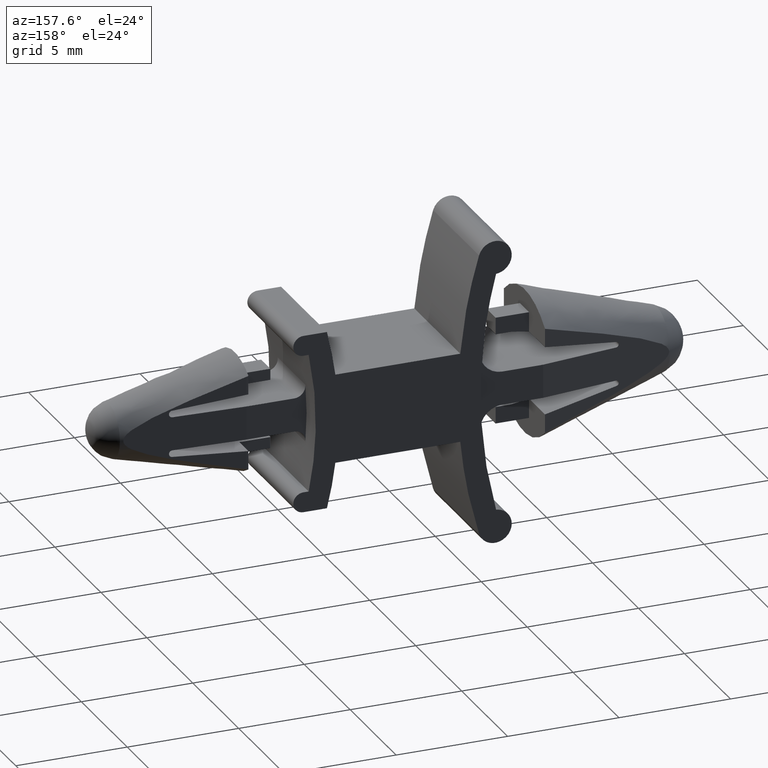
[diagram: clean part render]
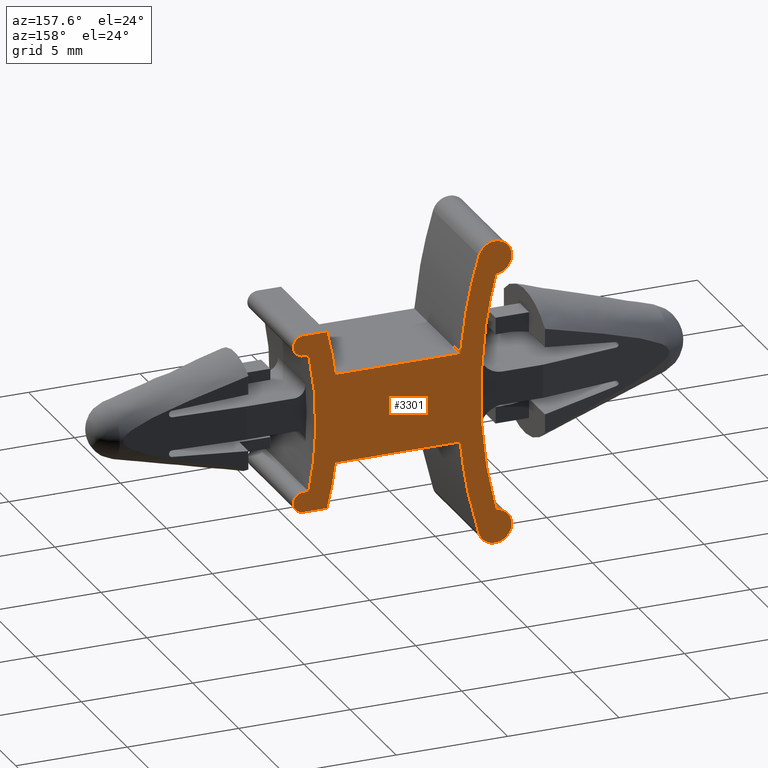
[diagram: same view with one face highlighted and labeled with its STEP entity id]
A machine part, auxiliary view. The second image highlights one B-rep face of the part: STEP entity #3301.
In plain terms, the highlighted face is a freeform B-spline surface patch.
Its self-contained STEP definition (entity closure, byte-faithful):
#1053=CARTESIAN_POINT('',(5.890000000000001,2.500000000000060,-4.0));
#1054=VERTEX_POINT('',#1053);
#1060=CARTESIAN_POINT('',(6.949999999999999,2.500000000000060,-4.0));
#1061=VERTEX_POINT('',#1060);
#1062=CARTESIAN_POINT('',(6.949999999999999,2.500000000000060,-4.0));
#1063=CARTESIAN_POINT('',(5.890000000000001,2.500000000000060,-4.0));
#1064=QUASI_UNIFORM_CURVE('',1,(#1062,#1063),.UNSPECIFIED.,.F.,.U.);
#1065=EDGE_CURVE('',#1061,#1054,#1064,.T.);
#1111=CARTESIAN_POINT('',(6.949999999999999,2.500000000000060,-3.100000000000000));
#1112=VERTEX_POINT('',#1111);
#1113=CARTESIAN_POINT('',(6.949999999999999,2.500000000000060,-4.0));
#1114=CARTESIAN_POINT('',(7.400000000000000,2.500000000000060,-4.0));
#1115=CARTESIAN_POINT('',(7.400000000000000,2.500000000000060,-3.550000000000000));
#1116=CARTESIAN_POINT('',(7.400000000000000,2.500000000000060,-3.100000000000000));
#1117=CARTESIAN_POINT('',(6.949999999999999,2.500000000000060,-3.100000000000001));
#1125=(BOUNDED_CURVE()B_SPLINE_CURVE(2,(#1113,#1114,#1115,#1116,#1117),.UNSPECIFIED.,.F.,.U.)B_SPLINE_CURVE_WITH_KNOTS((3,2,3),(0.0,0.500000000000000,1.0),.UNSPECIFIED.)CURVE()GEOMETRIC_REPRESENTATION_ITEM()RATIONAL_B_SPLINE_CURVE((1.0,0.707106781186547,1.0,0.707106781186547,1.0))REPRESENTATION_ITEM(''));
#1126=EDGE_CURVE('',#1061,#1112,#1125,.T.);
#1149=CARTESIAN_POINT('',(6.708405998815450,2.500000000000060,-3.100000094159435));
#1150=VERTEX_POINT('',#1149);
#1151=CARTESIAN_POINT('',(6.708405998815450,2.500000000000060,-3.100000094159435));
#1152=CARTESIAN_POINT('',(6.949999999999999,2.500000000000060,-3.100000000000000));
#1153=QUASI_UNIFORM_CURVE('',1,(#1151,#1152),.UNSPECIFIED.,.F.,.U.);
#1154=EDGE_CURVE('',#1150,#1112,#1153,.T.);
#1178=CARTESIAN_POINT('',(6.708406000000000,2.500000000000060,3.100000000000000));
#1179=VERTEX_POINT('',#1178);
#1185=CARTESIAN_POINT('',(6.949999999999999,2.500000000000060,3.100000000000000));
#1186=VERTEX_POINT('',#1185);
#1187=CARTESIAN_POINT('',(6.949999999999999,2.500000000000060,3.100000000000000));
#1188=CARTESIAN_POINT('',(6.708406000000000,2.500000000000060,3.100000000000000));
#1189=QUASI_UNIFORM_CURVE('',1,(#1187,#1188),.UNSPECIFIED.,.F.,.U.);
#1190=EDGE_CURVE('',#1186,#1179,#1189,.T.);
#1236=CARTESIAN_POINT('',(6.949999999999999,2.500000000000060,4.0));
#1237=VERTEX_POINT('',#1236);
#1238=CARTESIAN_POINT('',(6.949999999999999,2.500000000000060,3.100000000000001));
#1239=CARTESIAN_POINT('',(7.400000000000000,2.500000000000060,3.100000000000000));
#1240=CARTESIAN_POINT('',(7.400000000000000,2.500000000000060,3.550000000000000));
#1241=CARTESIAN_POINT('',(7.400000000000000,2.500000000000060,4.0));
#1242=CARTESIAN_POINT('',(6.949999999999999,2.500000000000060,4.0));
#1250=(BOUNDED_CURVE()B_SPLINE_CURVE(2,(#1238,#1239,#1240,#1241,#1242),.UNSPECIFIED.,.F.,.U.)B_SPLINE_CURVE_WITH_KNOTS((3,2,3),(0.0,0.500000000000000,1.0),.UNSPECIFIED.)CURVE()GEOMETRIC_REPRESENTATION_ITEM()RATIONAL_B_SPLINE_CURVE((1.0,0.707106781186547,1.0,0.707106781186547,1.0))REPRESENTATION_ITEM(''));
#1251=EDGE_CURVE('',#1186,#1237,#1250,.T.);
#1274=CARTESIAN_POINT('',(5.890000021097330,2.500000000000060,4.000000083070600));
#1275=VERTEX_POINT('',#1274);
#1276=CARTESIAN_POINT('',(5.890000021097330,2.500000000000060,4.000000083070600));
#1277=CARTESIAN_POINT('',(6.949999999999999,2.500000000000060,4.0));
#1278=QUASI_UNIFORM_CURVE('',1,(#1276,#1277),.UNSPECIFIED.,.F.,.U.);
#1279=EDGE_CURVE('',#1275,#1237,#1278,.T.);
#1304=CARTESIAN_POINT('',(6.708406000000000,2.500000000000060,3.100000000000000));
#1305=CARTESIAN_POINT('',(6.064804221439190,2.500000000000060,-0.000000046956754));
#1306=CARTESIAN_POINT('',(6.708405998815450,2.500000000000060,-3.100000094159435));
#1314=(BOUNDED_CURVE()B_SPLINE_CURVE(2,(#1304,#1305,#1306),.UNSPECIFIED.,.F.,.U.)CURVE()GEOMETRIC_REPRESENTATION_ITEM()QUASI_UNIFORM_CURVE()RATIONAL_B_SPLINE_CURVE((1.0,0.979120918723318,1.0))REPRESENTATION_ITEM(''));
#1315=EDGE_CURVE('',#1179,#1150,#1314,.T.);
#2006=CARTESIAN_POINT('',(5.513546577129890,2.499999999999945,-2.0));
#2007=VERTEX_POINT('',#2006);
#2015=CARTESIAN_POINT('',(5.513546577129890,2.499999999999945,-2.0));
#2016=CARTESIAN_POINT('',(5.639031051419906,2.500000000000060,-3.011809764965877));
#2017=CARTESIAN_POINT('',(5.889999999999996,2.500000000000060,-3.999999999999992));
#2025=(BOUNDED_CURVE()B_SPLINE_CURVE(2,(#2015,#2016,#2017),.UNSPECIFIED.,.F.,.U.)CURVE()GEOMETRIC_REPRESENTATION_ITEM()QUASI_UNIFORM_CURVE()RATIONAL_B_SPLINE_CURVE((1.0,0.998037498113485,1.0))REPRESENTATION_ITEM(''));
#2026=EDGE_CURVE('',#2007,#1054,#2025,.T.);
#2061=CARTESIAN_POINT('',(5.513546577129890,2.499999999999945,2.0));
#2062=VERTEX_POINT('',#2061);
#2082=CARTESIAN_POINT('',(5.890000021097330,2.500000000000060,4.000000083070600));
#2083=CARTESIAN_POINT('',(5.639031056715000,2.500000000000060,3.011809807661404));
#2084=CARTESIAN_POINT('',(5.513546577129890,2.499999999999945,2.0));
#2092=(BOUNDED_CURVE()B_SPLINE_CURVE(2,(#2082,#2083,#2084),.UNSPECIFIED.,.F.,.U.)CURVE()GEOMETRIC_REPRESENTATION_ITEM()QUASI_UNIFORM_CURVE()RATIONAL_B_SPLINE_CURVE((1.0,0.998037497948348,1.0))REPRESENTATION_ITEM(''));
#2093=EDGE_CURVE('',#1275,#2062,#2092,.T.);
#2692=CARTESIAN_POINT('',(-1.697711018102675,2.500000000000060,-5.351519210335380));
#2693=VERTEX_POINT('',#2692);
#2701=CARTESIAN_POINT('',(-0.931956863391151,2.500000000000060,-6.316596523446201));
#2702=VERTEX_POINT('',#2701);
#2703=CARTESIAN_POINT('',(-1.697711018102675,2.500000000000060,-5.351519210335380));
#2704=CARTESIAN_POINT('',(-2.362114341912587,2.500000000000060,-5.393870699271642));
#2705=CARTESIAN_POINT('',(-2.398856919232377,2.500000000000060,-6.058607796413560));
#2706=CARTESIAN_POINT('',(-2.435599496552168,2.500000000000060,-6.723344893555479));
#2707=CARTESIAN_POINT('',(-1.779911193200836,2.500000000000060,-6.838663036763806));
#2708=CARTESIAN_POINT('',(-1.124222889849504,2.500000000000060,-6.953981179972132));
#2709=CARTESIAN_POINT('',(-0.931956863391154,2.500000000000060,-6.316596523446200));
#2717=(BOUNDED_CURVE()B_SPLINE_CURVE(2,(#2703,#2704,#2705,#2706,#2707,#2708,#2709),.UNSPECIFIED.,.F.,.U.)B_SPLINE_CURVE_WITH_KNOTS((3,2,2,3),(0.0,0.333333333333333,0.666666666666667,1.0),.UNSPECIFIED.)CURVE()GEOMETRIC_REPRESENTATION_ITEM()RATIONAL_B_SPLINE_CURVE((1.0,0.747862141256116,1.0,0.747862141256116,1.0,0.747862141256116,1.0))REPRESENTATION_ITEM(''));
#2718=EDGE_CURVE('',#2693,#2702,#2717,.T.);
#2761=CARTESIAN_POINT('',(-1.697710977144475,2.500000000000060,5.351519096663181));
#2762=VERTEX_POINT('',#2761);
#2770=CARTESIAN_POINT('',(-1.697711018102684,2.500000000000060,-5.351519210335377));
#2771=CARTESIAN_POINT('',(-0.278159508226898,2.500000000000060,-0.000000062268417));
#2772=CARTESIAN_POINT('',(-1.697710977144475,2.500000000000060,5.351519096663181));
#2780=(BOUNDED_CURVE()B_SPLINE_CURVE(2,(#2770,#2771,#2772),.UNSPECIFIED.,.F.,.U.)CURVE()GEOMETRIC_REPRESENTATION_ITEM()QUASI_UNIFORM_CURVE()RATIONAL_B_SPLINE_CURVE((1.0,0.966572269944662,1.0))REPRESENTATION_ITEM(''));
#2781=EDGE_CURVE('',#2693,#2762,#2780,.T.);
#2868=CARTESIAN_POINT('',(-0.931956863391151,2.500000000000060,6.316596523446211));
#2869=VERTEX_POINT('',#2868);
#2877=CARTESIAN_POINT('',(-0.931956863391157,2.500000000000060,6.316596523446209));
#2878=CARTESIAN_POINT('',(-1.124222893989505,2.500000000000060,6.953981193696694));
#2879=CARTESIAN_POINT('',(-1.779911208993938,2.500000000000060,6.838663033986219));
#2880=CARTESIAN_POINT('',(-2.435599523998373,2.500000000000060,6.723344874275743));
#2881=CARTESIAN_POINT('',(-2.398856917462391,2.500000000000060,6.058607764391462));
#2882=CARTESIAN_POINT('',(-2.362114310926411,2.500000000000060,5.393870654507182));
#2883=CARTESIAN_POINT('',(-1.697710977144476,2.500000000000060,5.351519096663171));
#2891=(BOUNDED_CURVE()B_SPLINE_CURVE(2,(#2877,#2878,#2879,#2880,#2881,#2882,#2883),.UNSPECIFIED.,.F.,.U.)B_SPLINE_CURVE_WITH_KNOTS((3,2,2,3),(0.0,0.333333333333333,0.666666666666667,1.0),.UNSPECIFIED.)CURVE()GEOMETRIC_REPRESENTATION_ITEM()RATIONAL_B_SPLINE_CURVE((1.0,0.747862134159302,1.0,0.747862134159302,1.0,0.747862134159302,1.0))REPRESENTATION_ITEM(''));
#2892=EDGE_CURVE('',#2869,#2762,#2891,.T.);
#3180=CARTESIAN_POINT('',(-0.091632126966619,2.500000000000060,-2.0));
#3181=VERTEX_POINT('',#3180);
#3201=CARTESIAN_POINT('',(-0.931956863391151,2.500000000000060,-6.316596523446201));
#3202=CARTESIAN_POINT('',(-0.293715934542735,2.500000000000060,-4.200752266398101));
#3203=CARTESIAN_POINT('',(-0.091632126966626,2.500000000000060,-1.999999999999997));
#3211=(BOUNDED_CURVE()B_SPLINE_CURVE(2,(#3201,#3202,#3203),.UNSPECIFIED.,.F.,.U.)CURVE()GEOMETRIC_REPRESENTATION_ITEM()QUASI_UNIFORM_CURVE()RATIONAL_B_SPLINE_CURVE((1.0,0.994934024682460,1.0))REPRESENTATION_ITEM(''));
#3212=EDGE_CURVE('',#2702,#3181,#3211,.T.);
#3231=CARTESIAN_POINT('',(-0.091632126966619,2.500000000000060,2.0));
#3232=VERTEX_POINT('',#3231);
#3240=CARTESIAN_POINT('',(-0.091632126966619,2.500000000000060,2.0));
#3241=CARTESIAN_POINT('',(-0.293715934542731,2.500000000000060,4.200752266398090));
#3242=CARTESIAN_POINT('',(-0.931956863391151,2.500000000000060,6.316596523446211));
#3250=(BOUNDED_CURVE()B_SPLINE_CURVE(2,(#3240,#3241,#3242),.UNSPECIFIED.,.F.,.U.)CURVE()GEOMETRIC_REPRESENTATION_ITEM()QUASI_UNIFORM_CURVE()RATIONAL_B_SPLINE_CURVE((1.0,0.994934024682460,1.0))REPRESENTATION_ITEM(''));
#3251=EDGE_CURVE('',#3232,#2869,#3250,.T.);
#3270=CARTESIAN_POINT('',(-2.888309754137206,2.500000000000000,7.533970345909106));
#3271=CARTESIAN_POINT('',(-2.888309754137206,2.500000000000000,-7.533970738150436));
#3272=CARTESIAN_POINT('',(7.889453144633387,2.500000000000000,7.533970345909106));
#3273=CARTESIAN_POINT('',(7.889453144633387,2.500000000000000,-7.533970738150436));
#3274=B_SPLINE_SURFACE_WITH_KNOTS('',1,1,((#3270,#3272),(#3271,#3273)),.UNSPECIFIED.,.F.,.F.,.U.,(2,2),(2,2),(0.0,15.067941084059539),(0.0,10.777762898770590),.UNSPECIFIED.);
#3275=CARTESIAN_POINT('',(5.513546577129890,2.499999999999945,2.0));
#3276=CARTESIAN_POINT('',(-0.091632126966619,2.500000000000060,2.0));
#3277=QUASI_UNIFORM_CURVE('',1,(#3275,#3276),.UNSPECIFIED.,.F.,.U.);
#3278=EDGE_CURVE('',#2062,#3232,#3277,.T.);
#3279=ORIENTED_EDGE('',*,*,#3278,.F.);
#3280=ORIENTED_EDGE('',*,*,#2093,.F.);
#3281=ORIENTED_EDGE('',*,*,#1279,.T.);
#3282=ORIENTED_EDGE('',*,*,#1251,.F.);
#3283=ORIENTED_EDGE('',*,*,#1190,.T.);
#3284=ORIENTED_EDGE('',*,*,#1315,.T.);
#3285=ORIENTED_EDGE('',*,*,#1154,.T.);
#3286=ORIENTED_EDGE('',*,*,#1126,.F.);
#3287=ORIENTED_EDGE('',*,*,#1065,.T.);
#3288=ORIENTED_EDGE('',*,*,#2026,.F.);
#3289=CARTESIAN_POINT('',(5.513546577129890,2.499999999999945,-2.0));
#3290=CARTESIAN_POINT('',(-0.091632126966619,2.500000000000060,-2.0));
#3291=QUASI_UNIFORM_CURVE('',1,(#3289,#3290),.UNSPECIFIED.,.F.,.U.);
#3292=EDGE_CURVE('',#2007,#3181,#3291,.T.);
#3293=ORIENTED_EDGE('',*,*,#3292,.T.);
#3294=ORIENTED_EDGE('',*,*,#3212,.F.);
#3295=ORIENTED_EDGE('',*,*,#2718,.F.);
#3296=ORIENTED_EDGE('',*,*,#2781,.T.);
#3297=ORIENTED_EDGE('',*,*,#2892,.F.);
#3298=ORIENTED_EDGE('',*,*,#3251,.F.);
#3299=EDGE_LOOP('',(#3279,#3280,#3281,#3282,#3283,#3284,#3285,#3286,#3287,#3288,#3293,#3294,#3295,#3296,#3297,#3298));
#3300=FACE_OUTER_BOUND('',#3299,.T.);
#3301=ADVANCED_FACE('',(#3300),#3274,.F.);